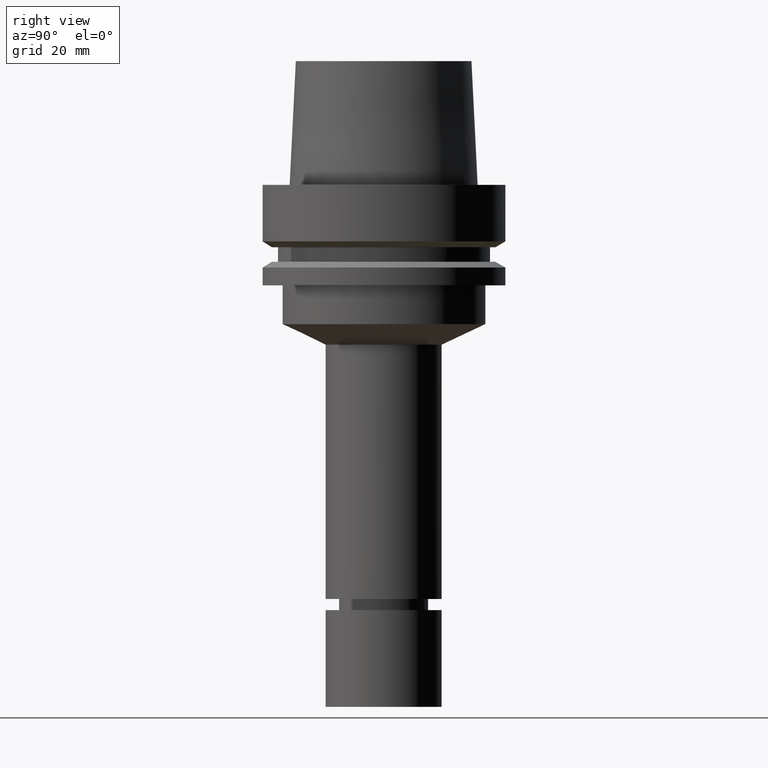
[diagram: clean part render]
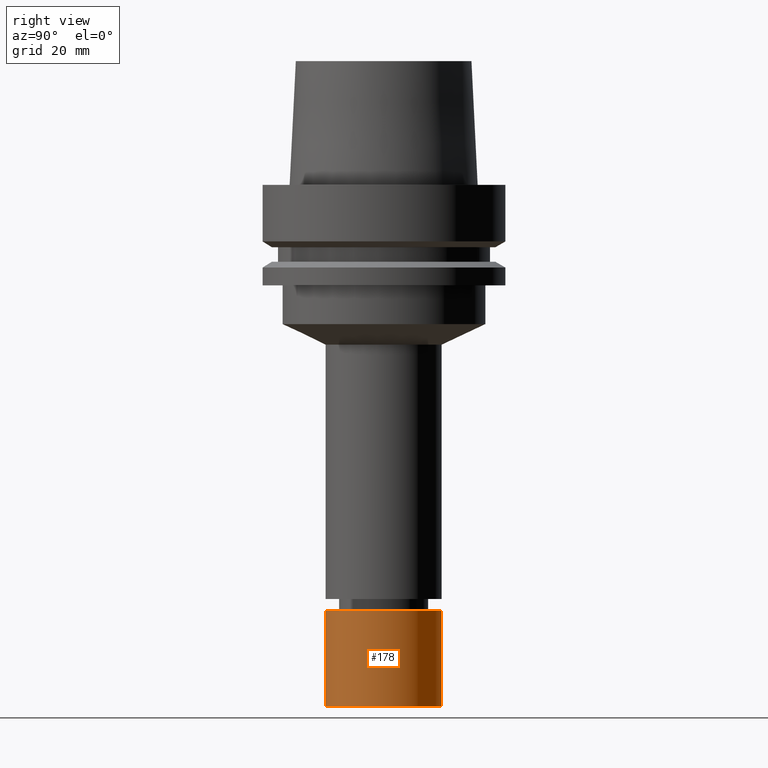
[diagram: same view with one face highlighted and labeled with its STEP entity id]
A machine part, right view. The second image highlights one B-rep face of the part: STEP entity #178.
In plain terms, the highlighted cylindrical surface (bore or boss wall) has radius 15 mm, axis along (0, 0, -1).
Its self-contained STEP definition (entity closure, byte-faithful):
#110=EDGE_CURVE('Unnamed[1]',#263,#263,#264,.T.);
#165=EDGE_CURVE('Unnamed[1]',#345,#345,#346,.T.);
#178=ADVANCED_FACE('Unnamed[1]',(#365,#366),#367,.T.);
#263=VERTEX_POINT('',#468);
#264=CIRCLE('',#469,15.0000000000001);
#345=VERTEX_POINT('',#569);
#346=CIRCLE('',#570,15.0);
#365=FACE_BOUND('',#594,.T.);
#366=FACE_BOUND('',#595,.T.);
#367=CYLINDRICAL_SURFACE('',#596,15.0);
#468=CARTESIAN_POINT('',(6.73555739531044E-015,15.0000000000001,-110.0));
#469=AXIS2_PLACEMENT_3D('',#683,#684,#685);
#569=CARTESIAN_POINT('',(8.26636589424463E-015,15.0,-135.0));
#570=AXIS2_PLACEMENT_3D('',#772,#773,#774);
#594=EDGE_LOOP('',(#794));
#595=EDGE_LOOP('',(#795));
#596=AXIS2_PLACEMENT_3D('',#796,#797,#798);
#683=CARTESIAN_POINT('',(6.73555739531044E-015,1.34711147906209E-014,-110.0));
#684=DIRECTION('',(6.12323399573677E-017,1.22464679914735E-016,-1.0));
#685=DIRECTION('',(-1.23259516440783E-032,1.0,1.22464679914735E-016));
#772=CARTESIAN_POINT('',(8.26636589424463E-015,1.65327317884893E-014,-135.0));
#773=DIRECTION('',(6.12323399573677E-017,1.22464679914735E-016,-1.0));
#774=DIRECTION('',(-1.23259516440783E-032,1.0,1.22464679914735E-016));
#794=ORIENTED_EDGE('',*,*,#165,.F.);
#795=ORIENTED_EDGE('',*,*,#110,.T.);
#796=CARTESIAN_POINT('',(7.50096164477754E-015,1.50019232895551E-014,-122.5));
#797=DIRECTION('',(6.12323399573677E-017,1.22464679914735E-016,-1.0));
#798=DIRECTION('',(-1.23259516440783E-032,1.0,1.22464679914735E-016));